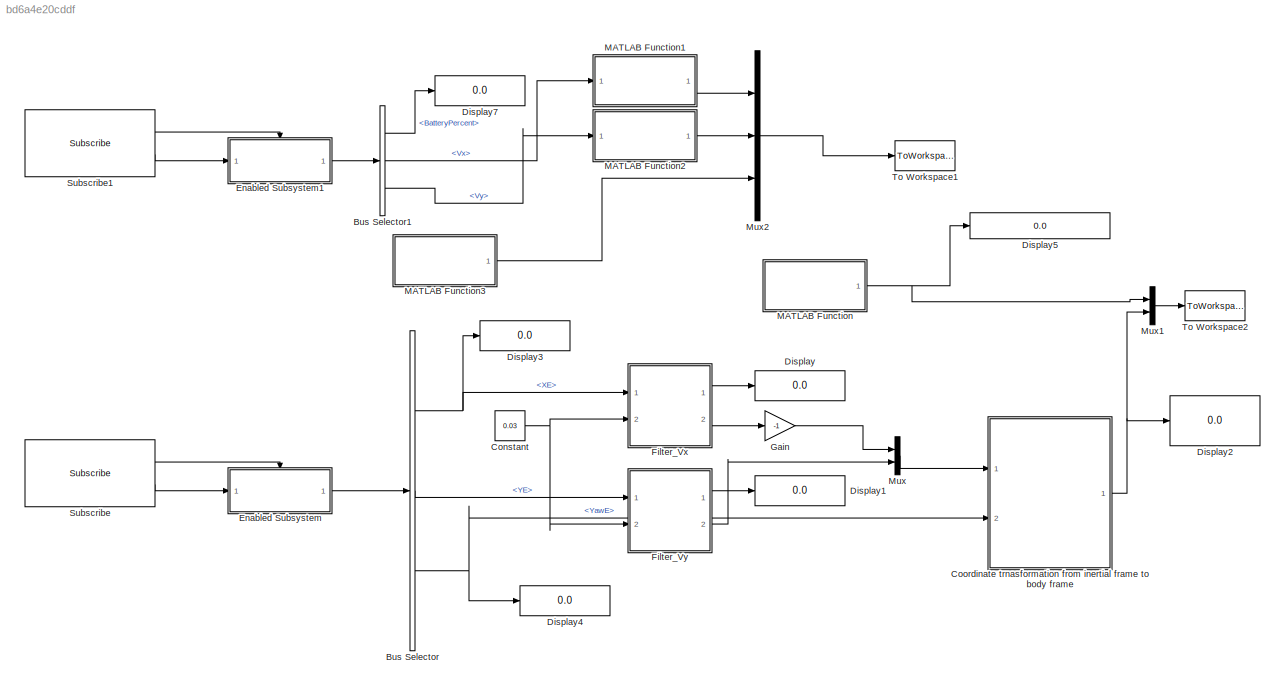
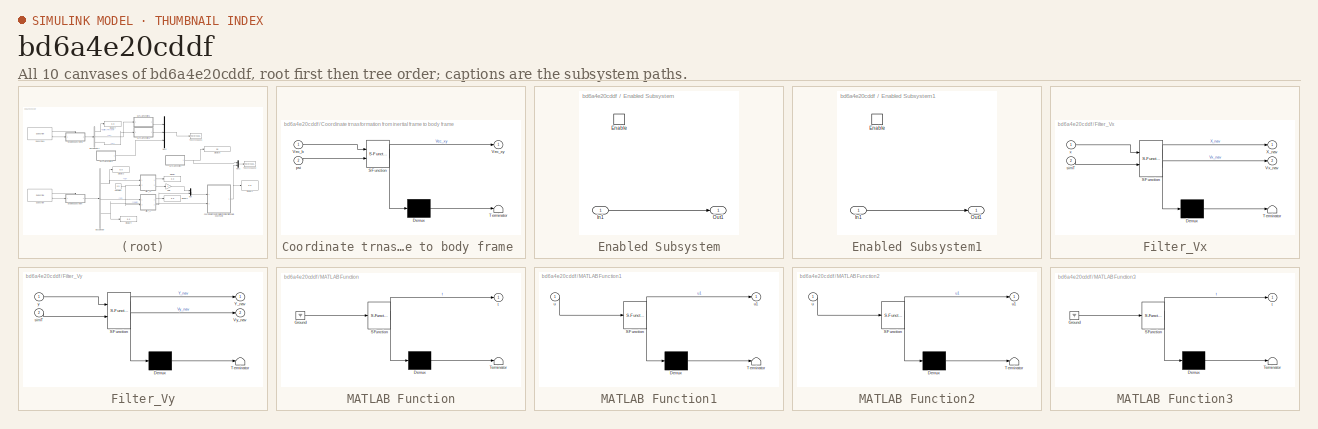
[diagram: thumbnail index - all 10 canvases of the model, root first then tree order]
MODEL slx_bd6a4e20cddf
KIND model
CONFIG AbsTol = auto
CONFIG FixedStep = auto
CONFIG MaxStep = auto
CONFIG MinStep = auto
CONFIG RelTol = 1e-3
CONFIG SampleTimeConstraint = Unconstrained
CONFIG Solver = VariableStepAuto
CONFIG SolverMode = Auto
CONFIG SolverName = VariableStepAuto
CONFIG StartTime = 0.0
CONFIG StopTime = inf
BLOCK [BusSelector] Bus Selector
  OutputSignals = XE,YE,YawE
  Ports = [1, 3]
BLOCK [BusSelector] Bus Selector1
  OutputSignals = BatteryPercent,Vx,Vy
  Ports = [1, 3]
BLOCK [Constant] Constant
  Value = 0.03
BLOCK [SubSystem] Coordinate trnasformation from inertial frame to body frame 
  ErrorFcn = Stateflow.Translate.translate
  PermitHierarchicalResolution = ExplicitOnly
  Ports = [2, 1]
  RequestExecContextInheritance = off
  SFBlockType = MATLAB Function
  TreatAsAtomicUnit = on
  Variant = off
BLOCK [Demux] Coordinate trnasformation from inertial frame to body frame / Demux 
  Outputs = 1
  Ports = [1, 1]
BLOCK [S-Function] Coordinate trnasformation from inertial frame to body frame / SFunction 
  EnableBusSupport = on
  FunctionName = sf_sfun
  PortCounts = [2 2]
  Ports = [2, 2]
  SFunctionDeploymentMode = off
  Tag = Stateflow S-Function testVPSdriver 1
BLOCK [Terminator] Coordinate trnasformation from inertial frame to body frame / Terminator 
BLOCK [Inport] Coordinate trnasformation from inertial frame to body frame /Vec_b
  IconDisplay = Port number
BLOCK [Outport] Coordinate trnasformation from inertial frame to body frame /Vec_xy
  IconDisplay = Port number
BLOCK [Inport] Coordinate trnasformation from inertial frame to body frame /psi
  IconDisplay = Port number
  Port = 2
BLOCK [Display] Display
  Decimation = 1
  Ports = [1]
BLOCK [Display] Display1
  Decimation = 1
  Ports = [1]
BLOCK [Display] Display2
  Decimation = 1
  Ports = [1]
BLOCK [Display] Display3
  Decimation = 1
  Ports = [1]
BLOCK [Display] Display4
  Decimation = 1
  Ports = [1]
BLOCK [Display] Display5
  Decimation = 1
  Format = long
  Ports = [1]
BLOCK [Display] Display7
  Decimation = 1
  Ports = [1]
BLOCK [SubSystem] Enabled Subsystem
  Ports = [1, 1, 1]
  RequestExecContextInheritance = off
  TreatAsAtomicUnit = on
  Variant = off
BLOCK [EnablePort] Enabled Subsystem/Enable
  Ports = []
BLOCK [Inport] Enabled Subsystem/In1
  IconDisplay = Port number
BLOCK [Outport] Enabled Subsystem/Out1
  IconDisplay = Port number
BLOCK [SubSystem] Enabled Subsystem1
  Ports = [1, 1, 1]
  RequestExecContextInheritance = off
  TreatAsAtomicUnit = on
  Variant = off
BLOCK [EnablePort] Enabled Subsystem1/Enable
  Ports = []
BLOCK [Inport] Enabled Subsystem1/In1
  IconDisplay = Port number
BLOCK [Outport] Enabled Subsystem1/Out1
  IconDisplay = Port number
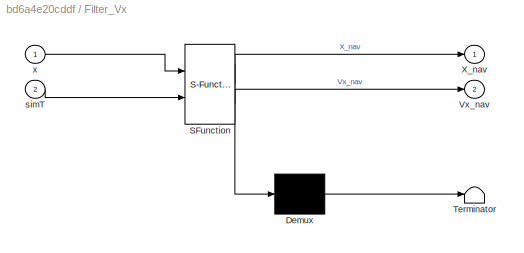
BLOCK [SubSystem] Filter_Vx
  ErrorFcn = Stateflow.Translate.translate
  PermitHierarchicalResolution = ExplicitOnly
  Ports = [2, 2]
  RequestExecContextInheritance = off
  SFBlockType = MATLAB Function
  TreatAsAtomicUnit = on
  Variant = off
BLOCK [Demux] Filter_Vx/ Demux 
  Outputs = 1
  Ports = [1, 1]
BLOCK [S-Function] Filter_Vx/ SFunction 
  EnableBusSupport = on
  FunctionName = sf_sfun
  PortCounts = [2 3]
  Ports = [2, 3]
  SFunctionDeploymentMode = off
  Tag = Stateflow S-Function testVPSdriver 3
BLOCK [Terminator] Filter_Vx/ Terminator 
BLOCK [Outport] Filter_Vx/Vx_nav
  IconDisplay = Port number
  Port = 2
BLOCK [Outport] Filter_Vx/X_nav
  IconDisplay = Port number
BLOCK [Inport] Filter_Vx/simT
  IconDisplay = Port number
  Port = 2
BLOCK [Inport] Filter_Vx/x
  IconDisplay = Port number
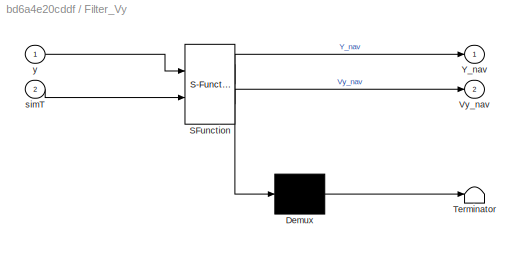
BLOCK [SubSystem] Filter_Vy
  ErrorFcn = Stateflow.Translate.translate
  PermitHierarchicalResolution = ExplicitOnly
  Ports = [2, 2]
  RequestExecContextInheritance = off
  SFBlockType = MATLAB Function
  TreatAsAtomicUnit = on
  Variant = off
BLOCK [Demux] Filter_Vy/ Demux 
  Outputs = 1
  Ports = [1, 1]
BLOCK [S-Function] Filter_Vy/ SFunction 
  EnableBusSupport = on
  FunctionName = sf_sfun
  PortCounts = [2 3]
  Ports = [2, 3]
  SFunctionDeploymentMode = off
  Tag = Stateflow S-Function testVPSdriver 4
BLOCK [Terminator] Filter_Vy/ Terminator 
BLOCK [Outport] Filter_Vy/Vy_nav
  IconDisplay = Port number
  Port = 2
BLOCK [Outport] Filter_Vy/Y_nav
  IconDisplay = Port number
BLOCK [Inport] Filter_Vy/simT
  IconDisplay = Port number
  Port = 2
BLOCK [Inport] Filter_Vy/y
  IconDisplay = Port number
BLOCK [Gain] Gain
  Gain = -1
  OutDataTypeStr = Inherit: Inherit via internal rule
  ParamDataTypeStr = Inherit: Inherit via internal rule
  SaturateOnIntegerOverflow = off
BLOCK [SubSystem] MATLAB Function
  ErrorFcn = Stateflow.Translate.translate
  PermitHierarchicalResolution = ExplicitOnly
  Ports = [0, 1]
  RequestExecContextInheritance = off
  SFBlockType = MATLAB Function
  TreatAsAtomicUnit = on
  Variant = off
BLOCK [Demux] MATLAB Function/ Demux 
  Outputs = 1
  Ports = [1, 1]
BLOCK [Ground] MATLAB Function/ Ground 
BLOCK [S-Function] MATLAB Function/ SFunction 
  EnableBusSupport = on
  FunctionName = sf_sfun
  PortCounts = [1 2]
  Ports = [1, 2]
  SFunctionDeploymentMode = off
  Tag = Stateflow S-Function testVPSdriver 2
BLOCK [Terminator] MATLAB Function/ Terminator 
BLOCK [Outport] MATLAB Function/t
  IconDisplay = Port number
BLOCK [SubSystem] MATLAB Function1
  ErrorFcn = Stateflow.Translate.translate
  PermitHierarchicalResolution = ExplicitOnly
  Ports = [1, 1]
  RequestExecContextInheritance = off
  SFBlockType = MATLAB Function
  TreatAsAtomicUnit = on
  Variant = off
BLOCK [Demux] MATLAB Function1/ Demux 
  Outputs = 1
  Ports = [1, 1]
BLOCK [S-Function] MATLAB Function1/ SFunction 
  EnableBusSupport = on
  FunctionName = sf_sfun
  PortCounts = [1 2]
  Ports = [1, 2]
  SFunctionDeploymentMode = off
  Tag = Stateflow S-Function testVPSdriver 8
BLOCK [Terminator] MATLAB Function1/ Terminator 
BLOCK [Inport] MATLAB Function1/u
  IconDisplay = Port number
BLOCK [Outport] MATLAB Function1/u1
  IconDisplay = Port number
BLOCK [SubSystem] MATLAB Function2
  ErrorFcn = Stateflow.Translate.translate
  PermitHierarchicalResolution = ExplicitOnly
  Ports = [1, 1]
  RequestExecContextInheritance = off
  SFBlockType = MATLAB Function
  TreatAsAtomicUnit = on
  Variant = off
BLOCK [Demux] MATLAB Function2/ Demux 
  Outputs = 1
  Ports = [1, 1]
BLOCK [S-Function] MATLAB Function2/ SFunction 
  EnableBusSupport = on
  FunctionName = sf_sfun
  PortCounts = [1 2]
  Ports = [1, 2]
  SFunctionDeploymentMode = off
  Tag = Stateflow S-Function testVPSdriver 5
BLOCK [Terminator] MATLAB Function2/ Terminator 
BLOCK [Inport] MATLAB Function2/u
  IconDisplay = Port number
BLOCK [Outport] MATLAB Function2/u1
  IconDisplay = Port number
BLOCK [SubSystem] MATLAB Function3
  ErrorFcn = Stateflow.Translate.translate
  PermitHierarchicalResolution = ExplicitOnly
  Ports = [0, 1]
  RequestExecContextInheritance = off
  SFBlockType = MATLAB Function
  TreatAsAtomicUnit = on
  Variant = off
BLOCK [Demux] MATLAB Function3/ Demux 
  Outputs = 1
  Ports = [1, 1]
BLOCK [Ground] MATLAB Function3/ Ground 
BLOCK [S-Function] MATLAB Function3/ SFunction 
  EnableBusSupport = on
  FunctionName = sf_sfun
  PortCounts = [1 2]
  Ports = [1, 2]
  SFunctionDeploymentMode = off
  Tag = Stateflow S-Function testVPSdriver 7
BLOCK [Terminator] MATLAB Function3/ Terminator 
BLOCK [Outport] MATLAB Function3/t
  IconDisplay = Port number
BLOCK [Mux] Mux
  DisplayOption = bar
  Inputs = 2
  Ports = [2, 1]
BLOCK [Mux] Mux1
  DisplayOption = bar
  Inputs = 2
  Ports = [2, 1]
BLOCK [Mux] Mux2
  DisplayOption = bar
  Inputs = 3
  Ports = [3, 1]
BLOCK [Reference] Subscribe  REF=robotlib/Subscribe
  Ports = [0, 2]
  SourceBlock = robotlib/Subscribe
  SourceLibraryInfo = This block requires Robotics System Toolbox
  SourceType = ROS Subscribe
BLOCK [Reference] Subscribe1  REF=robotlib/Subscribe
  Ports = [0, 2]
  SourceBlock = robotlib/Subscribe
  SourceLibraryInfo = This block requires Robotics System Toolbox
  SourceType = ROS Subscribe
BLOCK [ToWorkspace] To Workspace1
  FixptAsFi = on
  MaxDataPoints = inf
  Ports = [1]
  SampleTime = -1
  Save2DSignal = 3-D array (concatenate along third dimension)
  VariableName = velocity_ardrone
BLOCK [ToWorkspace] To Workspace2
  FixptAsFi = on
  MaxDataPoints = inf
  Ports = [1]
  SampleTime = -1
  Save2DSignal = 3-D array (concatenate along third dimension)
  VariableName = velocity_vps
LINE Bus Selector1:1 -> Display7:1
LINE Bus Selector1:2 -> MATLAB Function1:1
LINE Bus Selector1:3 -> MATLAB Function2:1
NET Bus Selector:1 -> Display3:1, Filter_Vx:1
LINE Bus Selector:2 -> Filter_Vy:1
NET Bus Selector:3 -> Coordinate trnasformation from inertial frame to body frame :2, Display4:1
NET Constant:1 -> Filter_Vx:2, Filter_Vy:2
NET Coordinate trnasformation from inertial frame to body frame :1 -> Display2:1, Mux1:2
LINE Enabled Subsystem/In1:1 -> Enabled Subsystem/Out1:1
LINE Enabled Subsystem1/In1:1 -> Enabled Subsystem1/Out1:1
LINE Enabled Subsystem1:1 -> Bus Selector1:1
LINE Enabled Subsystem:1 -> Bus Selector:1
LINE Filter_Vx:1 -> Display:1
LINE Filter_Vx:2 -> Gain:1
LINE Filter_Vy:1 -> Display1:1
LINE Filter_Vy:2 -> Mux:2
LINE Gain:1 -> Mux:1
LINE MATLAB Function1:1 -> Mux2:1
LINE MATLAB Function2:1 -> Mux2:2
LINE MATLAB Function3:1 -> Mux2:3
NET MATLAB Function:1 -> Display5:1, Mux1:1
LINE Mux1:1 -> To Workspace2:1
LINE Mux2:1 -> To Workspace1:1
LINE Mux:1 -> Coordinate trnasformation from inertial frame to body frame :1
LINE Subscribe1:1 -> Enabled Subsystem1:enable
LINE Subscribe1:2 -> Enabled Subsystem1:1
LINE Subscribe:1 -> Enabled Subsystem:enable
LINE Subscribe:2 -> Enabled Subsystem:1
note: NET lines group one-source signal fan-out (src -> all destinations, sorted); 1:1 wires keep LINE
CHART Coordinate trnasformation 
from inertial frame to body frame  states=1 transitions=1
  STATE_LABEL 'eML_blk_kernel()'
  STATE_LABEL 'SCRIPT:\nfunction Vec_xy  = fcn(Vec_b , psi)\n%#codegen\nT = [cos(psi) sin(psi) ; sin(psi) -cos(psi)] ; \nVec_xy = T*Vec_b(1:2,1); \n\n'
CHART MATLAB Function states=1 transitions=1
  STATE_LABEL 'eML_blk_kernel()'
  STATE_LABEL "SCRIPT:\nfunction t = sysTime( )\ncoder.extrinsic('now');\nt = 0;\nt = now;\nend"
CHART Filter_Vx states=1 transitions=1
  STATE_LABEL 'eML_blk_kernel()'
  STATE_LABEL "SCRIPT:\nfunction [X_nav,Vx_nav] = fcn(x,simT)\npersistent Phi;\nif isempty(Phi)\n    Phi = [1 simT;0 1];\nend\n\npersistent Tao;\nif isempty(Tao)\n    Tao = [0 simT]';\nend\n\npersistent Q;\nif isempty(Q)\n    Q = 50;\nend\n\npersistent H;\nif isempty(H)\n    H = [1 0];\nend\n\npersistent R;\nif isempty(R)\n    R = 7.81e-1;\nend\n\npersistent Xe;\nif isempty(Xe)\n    Xe = [0 0]';\nend\n\npersistent X_e;\nif isempty(X_e)\n    X_e ...<+502ch>"
CHART Filter_Vy states=1 transitions=1
  STATE_LABEL 'eML_blk_kernel()'
  STATE_LABEL "SCRIPT:\nfunction [Y_nav,Vy_nav] = fcn(y,simT)\npersistent Phi;\nif isempty(Phi)\n    Phi = [1 simT;0 1];\nend\n\npersistent Tao;\nif isempty(Tao)\n    Tao = [0 simT]';\nend\n\npersistent Q;\nif isempty(Q)\n    Q = 50;\nend\n\npersistent H;\nif isempty(H)\n    H = [1 0];\nend\n\npersistent R;\nif isempty(R)\n    R = 2.33e-1;\nend\n\npersistent Xe;\nif isempty(Xe)\n    Xe = [0 0]';\nend\n\npersistent X_e;\nif isempty(X_e)\n    X_e ...<+502ch>"
CHART MATLAB Function2 states=1 transitions=1
  STATE_LABEL 'eML_blk_kernel()'
  STATE_LABEL 'SCRIPT:\nfunction u1 = s2d( u )\nu1 = 0;\nu1 = double(u);\nend'
CHART MATLAB Function3 states=1 transitions=1
  STATE_LABEL 'eML_blk_kernel()'
  STATE_LABEL "SCRIPT:\nfunction t = sysTime( )\ncoder.extrinsic('now');\nt = 0;\nt = now;\nend"
CHART MATLAB Function1 states=1 transitions=1
  STATE_LABEL 'eML_blk_kernel()'
  STATE_LABEL 'SCRIPT:\nfunction u1 = s2d( u )\nu1 = 0;\nu1 = double(u);\nend'
